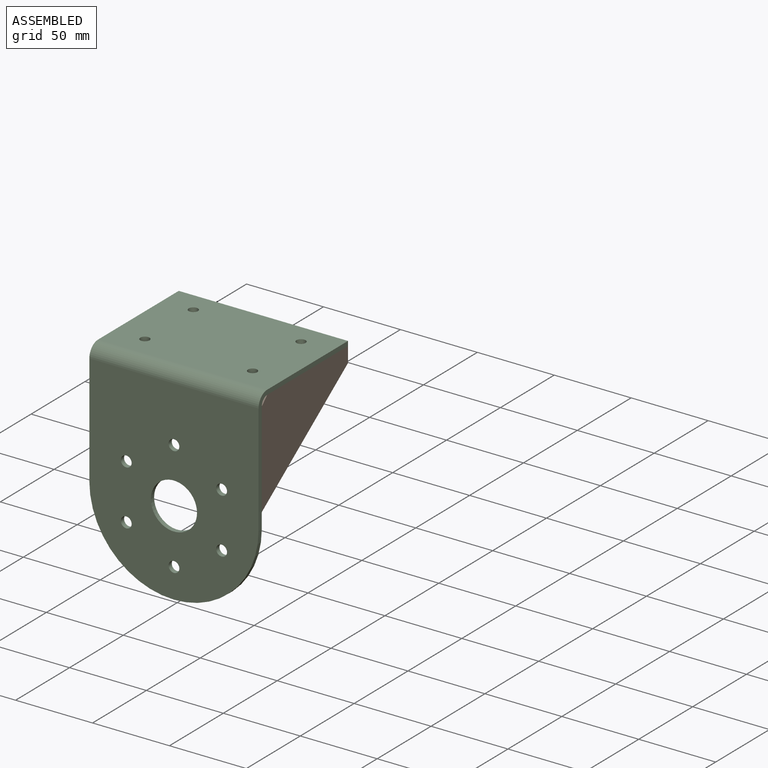
[diagram: assembled view]
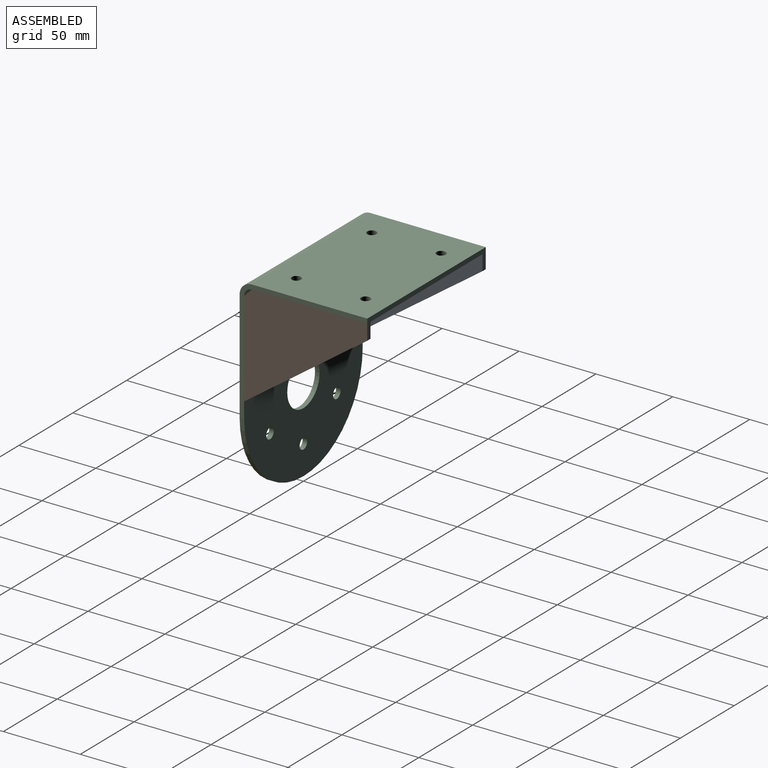
[diagram: assembled view, second angle]
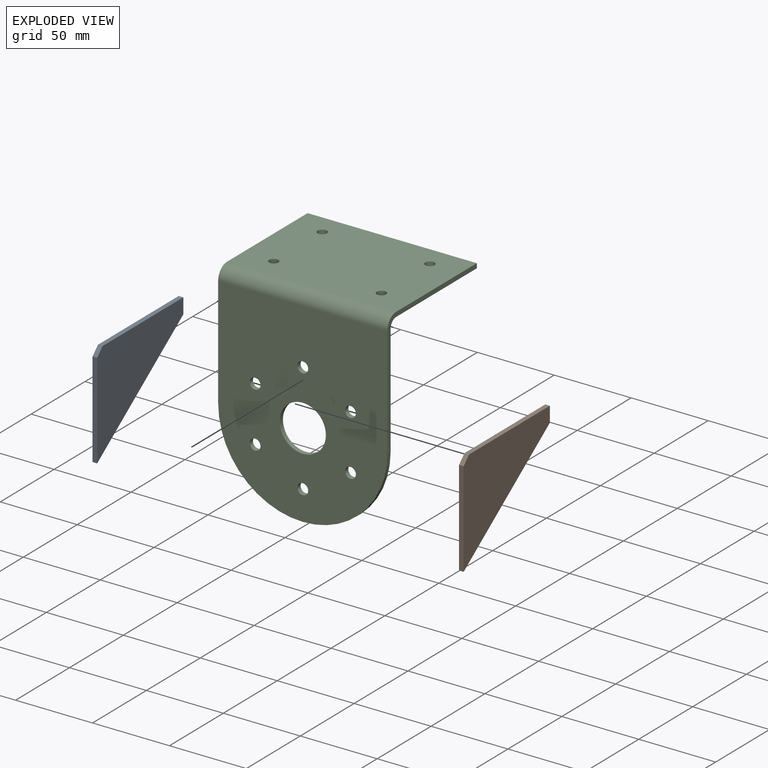
[diagram: exploded view]
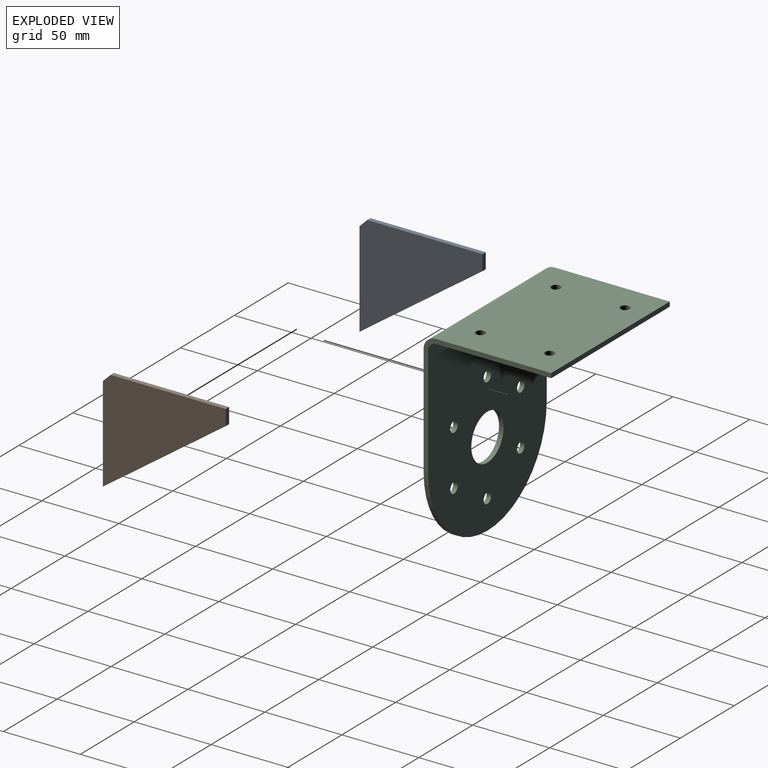
[diagram: exploded view, second angle]
ASSEMBLY  parts=3 mates=2
PART A: 7 faces, bbox 80x3x67 mm
  f0: plane 75x3mm, normal (0,0,-1), area 225mm2, adj f1,f4,f5,f6
  f1: plane 10x3mm, normal (1,0,0), area 30mm2, adj f0,f2,f5,f6
  f2: plane 80x57mm, normal (0.58,0,0.81), area 294.7mm2, adj f1,f3,f5,f6
  f3: plane 62x3mm, normal (-1,0,0), area 186mm2, adj f2,f4,f5,f6
  f4: plane 5x5mm, normal (-0.71,0,-0.71), area 21.2mm2, adj f0,f3,f5,f6
  f5: plane 80x67mm, normal (0,1,0), area 3067.5mm2, adj f0,f1,f2,f3,f4
  f6: plane 80x67mm, normal (0,-1,0), area 3067.5mm2, adj f0,f1,f2,f3,f4
PART B: same geometry as A
PART C: 21 faces, bbox 83x110x135 mm
  f0: plane 83x80mm, normal (0,-1,0), area 471.6mm2, adj f1,f4,f5,f6,f7,f8,f9,f10
  f1: cylinder r=55mm len=110mm, axis (-1,0,0), area 518.4mm2, adj f0,f2,f6,f9
  f2: plane 83x80mm, normal (0,1,0), area 471.6mm2, adj f1,f4,f5,f6,f7,f8,f9,f10
  f3: cylinder r=15mm len=30mm, axis (-1,0,0), area 282.7mm2, adj f6,f9
  f4: plane 110x75mm, normal (0,0,-1), area 8136.9mm2, adj f0,f2,f5,f7,f11,f12,f13,f14
  f5: plane 110x3mm, normal (1,0,0), area 330mm2, adj f0,f2,f4,f8
  f6: plane 127x110mm, normal (-1,0,0), area 11733.9mm2, adj f0,f1,f2,f3,f7,f15,f16,f17
  f7: cylinder r=8mm len=110mm, axis (0,1,0), area 1382.3mm2, adj f0,f2,f4,f6
  f8: plane 110x75mm, normal (0,0,1), area 8136.9mm2, adj f0,f2,f5,f10,f11,f12,f13,f14
  f9: plane 127x110mm, normal (1,0,0), area 11733.9mm2, adj f0,f1,f2,f3,f10,f15,f16,f17
  f10: cylinder r=5mm len=110mm, axis (0,1,0), area 863.9mm2, adj f0,f2,f8,f9
  f11: cylinder r=3mm len=6mm, axis (0,0,-1), area 56.5mm2, adj f4,f8
  f12: cylinder r=3mm len=6mm, axis (0,0,-1), area 56.5mm2, adj f4,f8
  f13: cylinder r=3mm len=6mm, axis (0,0,-1), area 56.5mm2, adj f4,f8
  f14: cylinder r=3mm len=6mm, axis (0,0,-1), area 56.5mm2, adj f4,f8
  f15: cylinder r=3.5mm len=7mm, axis (1,0,0), area 66mm2, adj f6,f9
  f16: cylinder r=3.5mm len=7mm, axis (1,0,0), area 66mm2, adj f6,f9
  f17: cylinder r=3.5mm len=7mm, axis (1,0,0), area 66mm2, adj f6,f9
  f18: cylinder r=3.5mm len=7mm, axis (1,0,0), area 66mm2, adj f6,f9
  f19: cylinder r=3.5mm len=7mm, axis (1,0,0), area 66mm2, adj f6,f9
  f20: cylinder r=3.5mm len=7mm, axis (1,0,0), area 66mm2, adj f6,f9
PLACE A rot(axis=(-0.71,-0.71,0),180deg) t=(250,-132.5,80)mm
PLACE B rot(axis=(-0.71,-0.71,0),180deg) t=(357,-132.5,80)mm
PLACE C rot(axis=(-0.71,-0.71,0),180deg) t=(250,-132.5,80)mm
MATE fastened A.f0 <-> C.f8  axis (0,0,-1) through (-55,80,77)mm
MATE fastened B.f5 <-> C.f2  axis (-1,0,0) through (55,0,72)mm
